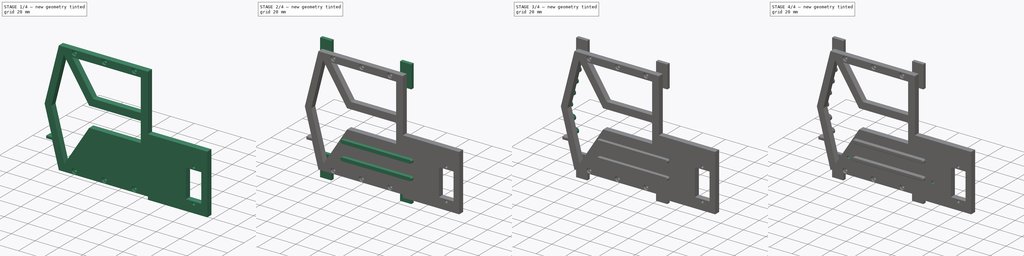
[diagram: build sequence overview — one tinted view per stage of 4, left to right]
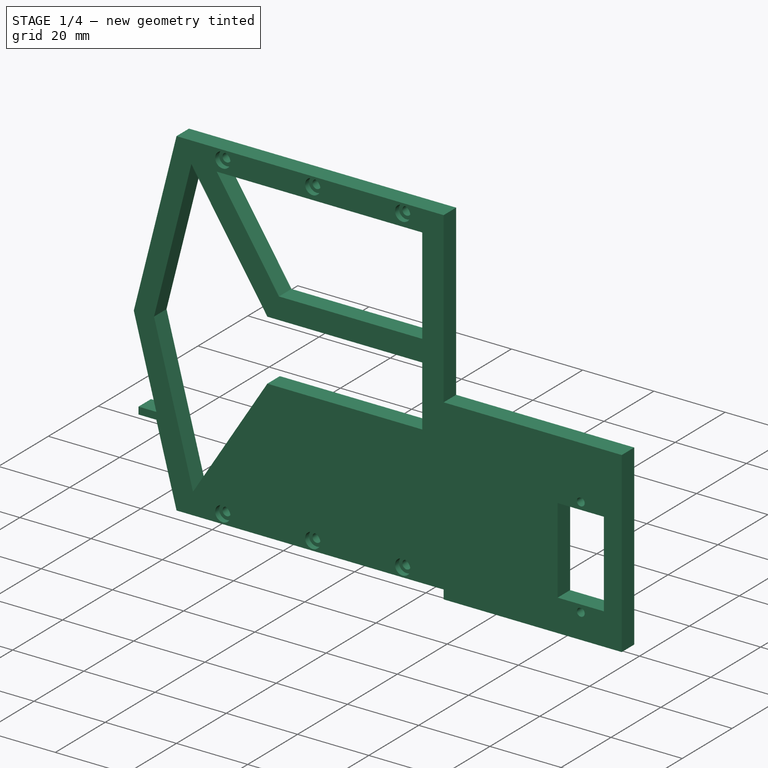
[diagram: stage 1 of 4 — iso view after this stage's code; geometry added in this stage tinted green]
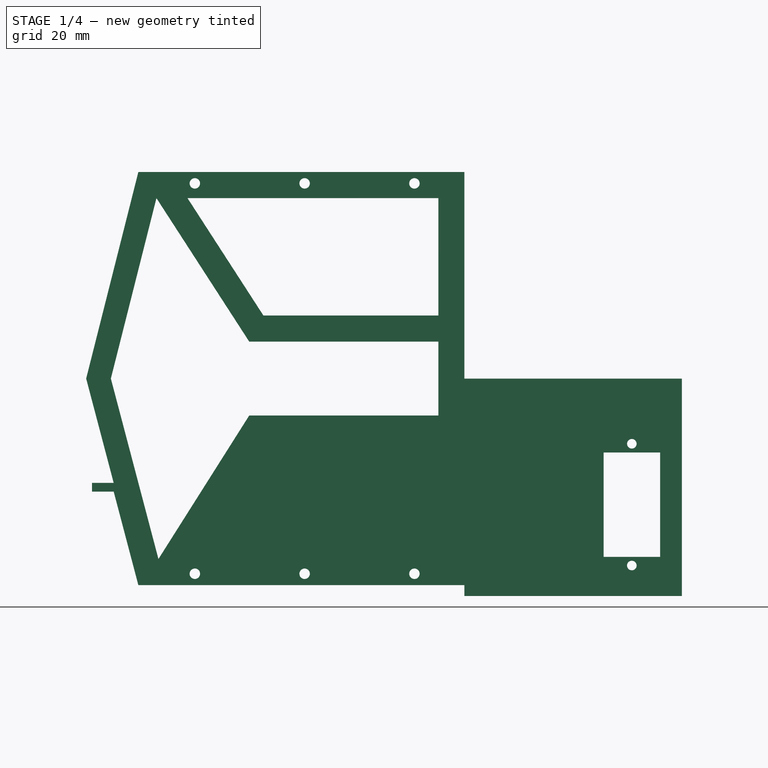
[diagram: stage 1 of 4 — front view after this stage's code; geometry added in this stage tinted green]
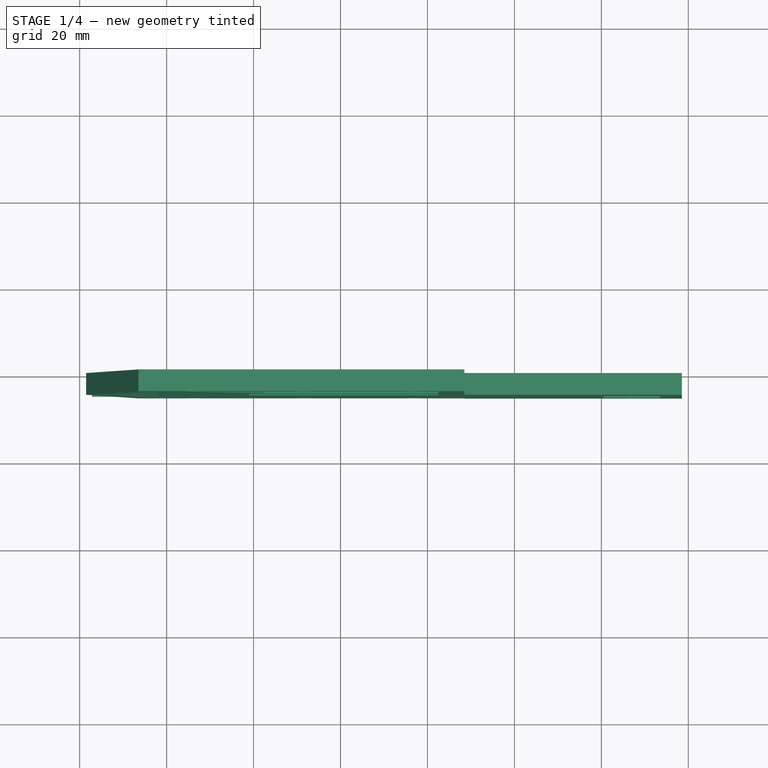
[diagram: stage 1 of 4 — top view after this stage's code; geometry added in this stage tinted green]
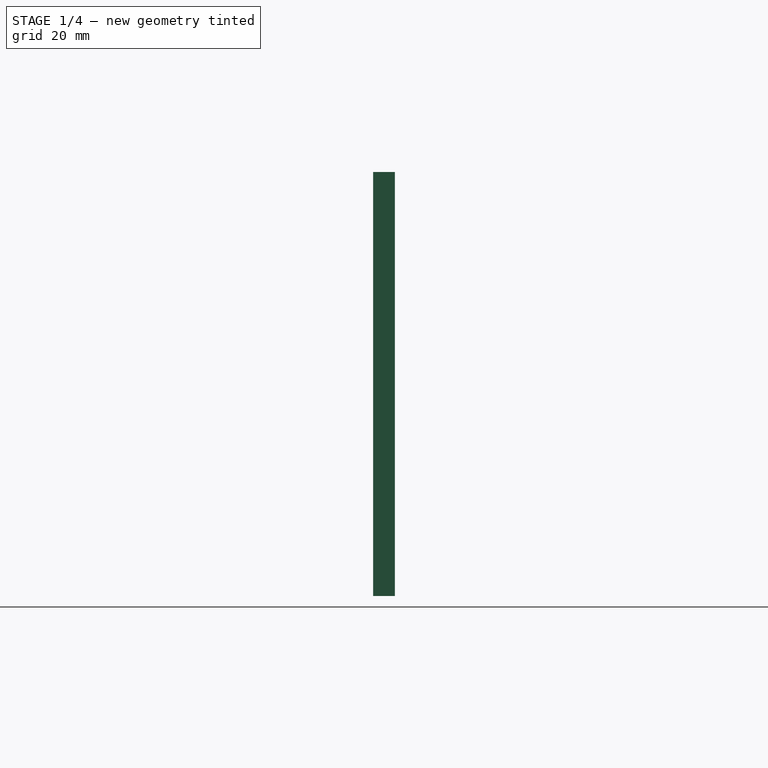
[diagram: stage 1 of 4 — right view after this stage's code; geometry added in this stage tinted green]
FCSTD DOCUMENT  (FreeCAD 1.0R39319 (Git))
Label: middle-bracket-03
License: All rights reserved
LicenseURL: http://en.wikipedia.org/wiki/All_rights_reserved
objects: Sketcher::SketchObject×9, PartDesign::Pad×4, Part::Feature×2, PartDesign::Hole×2, App::Part×1, PartDesign::Body×1, PartDesign::Plane×1, PartDesign::Pocket×1, PartDesign::Chamfer×1, PartDesign::Fillet×1, Measure::MeasureDistance×1
note: 49 computed .brp shape members not serialized (recipe doc carries the construction recipe); baked Part::Feature solids carry a one-line shape summary decoded from their .brp

FEATURE [Part::Feature] LinearPattern001_cs001
  shape: bbox 60 x 0.0002133 x 8 mm, 0 faces, 0 solids (baked)
FEATURE [Sketcher::SketchObject] Sketch001  label="Sketch-pad"
  ArcFitTolerance = 1e-06
  FullyConstrained = true
  MakeInternals = false
  Placement = pos=(0,0,0) rot=(1,0,0;1.5708rad)
  sketch-geometry (46):
    g0: LineSegment [constr] StartX=-50 StartY=55 StartZ=0 EndX=50 EndY=55 EndZ=0
    g1: LineSegment [constr] StartX=-50 StartY=-40 StartZ=0 EndX=50 EndY=-40 EndZ=0
    g2: LineSegment [constr] StartX=-18.4959 StartY=65 StartZ=0 EndX=-18.4959 EndY=-65 EndZ=0
    g3: LineSegment [constr] StartX=42.5041 StartY=-65 StartZ=0 EndX=42.5041 EndY=65 EndZ=0
    g4: GeomPoint [constr] X=-18.4959 Y=55 Z=0
    g5: GeomPoint [constr] X=42.5041 Y=55 Z=0
    g6: GeomPoint [constr] X=42.5041 Y=-40 Z=0
    g7: GeomPoint [constr] X=-18.4959 Y=-40 Z=0
    g8: LineSegment StartX=48.5041 StartY=55 StartZ=0 EndX=-26.4959 EndY=55 EndZ=0
    g9: LineSegment StartX=-26.4959 StartY=55 StartZ=0 EndX=-38.4959 EndY=7.5 EndZ=0
    g10: LineSegment StartX=-32.1662 StartY=-18.5 StartZ=0 EndX=-26.4959 EndY=-40 EndZ=0
    g11: LineSegment StartX=-26.4959 StartY=-40 StartZ=0 EndX=48.5041 EndY=-40 EndZ=0
    g12: LineSegment StartX=48.5041 StartY=-40 StartZ=0 EndX=48.5041 EndY=-42.5 EndZ=0
    g13: LineSegment [constr] StartX=-50 StartY=7.5 StartZ=0 EndX=50 EndY=7.5 EndZ=0
    g14: LineSegment StartX=-22.334 StartY=49 StartZ=0 EndX=-32.8182 EndY=7.5 EndZ=0
    g15: LineSegment StartX=42.5041 StartY=49 StartZ=0 EndX=-15.189 EndY=49 EndZ=0
    g16: LineSegment StartX=42.5041 StartY=7.5 StartZ=0 EndX=42.5041 EndY=16 EndZ=0
    g17: LineSegment StartX=42.5041 StartY=-1 StartZ=0 EndX=42.5041 EndY=7.5 EndZ=0
    g18: LineSegment StartX=-21.8732 StartY=-34 StartZ=0 EndX=-32.8182 EndY=7.5 EndZ=0
    g19: LineSegment [constr] StartX=-0.995912 StartY=16 StartZ=0 EndX=39.0041 EndY=16 EndZ=0
    g20: LineSegment [constr] StartX=-0.995912 StartY=-1 StartZ=0 EndX=39.0041 EndY=-1 EndZ=0
    g21: LineSegment StartX=-22.334 StartY=49 StartZ=0 EndX=-0.995912 EndY=16 EndZ=0
    g22: LineSegment StartX=-21.8732 StartY=-34 StartZ=0 EndX=-0.995912 EndY=-1 EndZ=0
    g23: LineSegment StartX=-0.995912 StartY=16 StartZ=0 EndX=42.5041 EndY=16 EndZ=0
    g24: LineSegment StartX=42.5041 StartY=22 StartZ=0 EndX=2.26948 EndY=22 EndZ=0
    g25: LineSegment StartX=2.26948 StartY=22 StartZ=0 EndX=-15.189 EndY=49 EndZ=0
    g26: LineSegment StartX=-0.995912 StartY=-1 StartZ=0 EndX=42.5041 EndY=-1 EndZ=0
    g27: LineSegment StartX=42.5041 StartY=22 StartZ=0 EndX=42.5041 EndY=49 EndZ=0
    g28: LineSegment [constr] StartX=58.5655 StartY=-17.5 StartZ=0 EndX=-11.4345 EndY=-17.5 EndZ=0
    g29: LineSegment StartX=48.5041 StartY=7.5 StartZ=0 EndX=98.5041 EndY=7.5 EndZ=0
    g30: LineSegment StartX=98.5041 StartY=7.5 StartZ=0 EndX=98.5041 EndY=-42.5 EndZ=0
    g31: LineSegment StartX=98.5041 StartY=-42.5 StartZ=0 EndX=48.5041 EndY=-42.5 EndZ=0
    g32: LineSegment StartX=48.5041 StartY=7.5 StartZ=0 EndX=48.5041 EndY=55 EndZ=0
    g33: LineSegment StartX=-32.1662 StartY=-16.5 StartZ=0 EndX=-37.1662 EndY=-16.5 EndZ=0
    g34: LineSegment StartX=-37.1662 StartY=-16.5 StartZ=0 EndX=-37.1662 EndY=-18.5 EndZ=0
    g35: LineSegment StartX=-37.1662 StartY=-18.5 StartZ=0 EndX=-32.1662 EndY=-18.5 EndZ=0
    g36: LineSegment StartX=-32.1662 StartY=-16.5 StartZ=0 EndX=-38.4959 EndY=7.5 EndZ=0
    g37: LineSegment StartX=80.5041 StartY=-9.5 StartZ=0 EndX=80.5041 EndY=-33.5 EndZ=0
    g38: LineSegment StartX=80.5041 StartY=-33.5 StartZ=0 EndX=93.5041 EndY=-33.5 EndZ=0
    g39: LineSegment StartX=93.5041 StartY=-33.5 StartZ=0 EndX=93.5041 EndY=-9.5 EndZ=0
    g40: LineSegment StartX=93.5041 StartY=-9.5 StartZ=0 EndX=80.5041 EndY=-9.5 EndZ=0
    g41: GeomPoint [constr] X=87.0041 Y=-21.5 Z=0
    g42: LineSegment [constr] StartX=87.0041 StartY=-7.5 StartZ=0 EndX=87.0041 EndY=-21.5 EndZ=0
    g43: LineSegment [constr] StartX=87.0041 StartY=-21.5 StartZ=0 EndX=87.0041 EndY=-35.5 EndZ=0
    g44: Circle CenterX=87.0041 CenterY=-7.5 CenterZ=0 NormalX=0 NormalY=0 NormalZ=1 AngleXU=0 Radius=1.1
    g45: Circle CenterX=87.0041 CenterY=-35.5 CenterZ=0 NormalX=0 NormalY=0 NormalZ=1 AngleXU=0 Radius=1.1
  constraints (127):
    c: DistanceX(g0,g0) = 100
    c: DistanceY(g-20,g0) = -0.5
    c: Symmetric(g0,g0,g-2)
    c: Symmetric(g1,g1,g-2)
    c: DistanceY(g-5,g1) = 0.5
    c: DistanceX(g1,g1) = 100
    c: DistanceX(g2,g-11) = 0.5
    c: DistanceX(g-10,g3) = 0.5
    c: DistanceY(g2,g2) = 130
    c: DistanceY(g3,g3) = 130
    c: Symmetric(g2,g2,g-1)
    c: Symmetric(g3,g3,g-1)
    c: PointOnObject(g4,g2)
    c: PointOnObject(g4,g0)
    c: PointOnObject(g5,g3)
    c: PointOnObject(g6,g1)
    c: PointOnObject(g7,g2)
    c: PointOnObject(g6,g3)
    c: PointOnObject(g5,g0)
    c: PointOnObject(g7,g1)
    c: PointOnObject(g8,g0)
    c: PointOnObject(g8,g0)
    c: Coincident(g8,g9)
    c: PointOnObject(g10,g1)
    c: Coincident(g10,g11)
    c: PointOnObject(g11,g1)
    c: Coincident(g11,g12)
    c: Coincident(g32,g8)
    c: Symmetric(g0,g1,g13)
    c: Symmetric(g1,g0,g13)
    c: PointOnObject(g9,g13)
    c: DistanceX(g8,g8) = 75
    c: DistanceX(g11,g11) = 75
    c: DistanceX(g9,g8) = 12
    c: PointOnObject(g14,g13)
    c: PointOnObject(g27,g3)
    c: Coincident(g27,g15)
    c: Parallel(g8,g15)
    c: Parallel(g9,g14)
    c: DistanceY(g27,g8) = 6
    c: DistanceY(g10,g18) = 6
    c: Vertical(g12)
    c: PointOnObject(g17,g13)
    c: Parallel(g17,g12)
    c: Parallel(g16,g12)
    c: Coincident(g18,g14)
    c: Distance(g14,g10) = 6
    c: Distance(g18,g10) = 6
    c: DistanceY(g11,g13) = 47.5
    c: DistanceY(g13,g0) = 47.5
    c: Distance(g19) = 40
    c: Horizontal(g19)
    c: DistanceY(g19,g-13) = 41.5
    c: DistanceX(g-13,g19) = 17
    c: Symmetric(g19,g20,g13)
    c: Symmetric(g19,g20,g13)
    c: Coincident(g21,g14)
    c: Coincident(g21,g19)
    c: Coincident(g22,g20)
    c: Coincident(g19,g23)
    c: Horizontal(g23)
    c: Coincident(g24,g25)
    c: Horizontal(g26)
    c: Coincident(g15,g25)
    c: Coincident(g16,g23)
    c: Coincident(g17,g26)
    c: PointOnObject(g16,g3)
    c: Parallel(g23,g24)
    c: Parallel(g25,g21)
    c: Coincident(g27,g24)
    c: DistanceY(g16,g24) = 6
    c: Distance(g24,g21) = 6
    c: Coincident(g26,g20)
    c: Coincident(g16,g17)
    c: Coincident(g18,g22)
    c: DistanceX(g24,g8) = 6
    c: DistanceX(g17,g11) = 6
    c: Distance(g14,g8) = 6
    c: Symmetric(g18,g20,g28)
    c: Horizontal(g28)
    c: DistanceX(g28,g28) = 70
    c: Horizontal(g29)
    c: Coincident(g29,g30)
    c: Vertical(g30)
    c: Coincident(g30,g31)
    c: Horizontal(g31)
    c: Coincident(g12,g31)
    c: Coincident(g32,g29)
    c: Symmetric(g29,g12,g28)
    c: Parallel(g32,g12)
    c: Horizontal(g33)
    c: Coincident(g33,g34)
    c: Vertical(g34)
    c: Coincident(g34,g35)
    c: Horizontal(g35)
    c: Coincident(g10,g35)
    c: Coincident(g36,g33)
    c: Coincident(g36,g9)
    c: DistanceY(g34,g34) = 2
    c: Parallel(g36,g10)
    c: DistanceX(g33,g33) = 5
    c: Symmetric(g33,g10,g28)
    c: DistanceX(g31,g31) = 50
    c: Coincident(g37,g38)
    c: Coincident(g38,g39)
    c: Coincident(g39,g40)
    c: Coincident(g40,g37)
    c: Vertical(g37)
    c: Vertical(g39)
    c: Horizontal(g38)
    c: Horizontal(g40)
    c: Distance(g37,g39) = 13
    c: Distance(g38,g40) = 24
    c: DistanceY(g28,g37) = 8
    c: DistanceX(g39,g29) = 5
    c: DistanceY(g30,g30) = 50
    c: Symmetric(g37,g38,g41)
    c: Coincident(g42,g41)
    c: Vertical(g42)
    c: Coincident(g42,g43)
    c: Equal(g42,g43)
    c: DistanceY(g42,g42) = 14
    c: DistanceY(g43,g43) = 14
    c: Radius(g44) = 1.1
    c: Coincident(g42,g44)
    c: Diameter(g45) = 2.2
    c: Coincident(g45,g43)
FEATURE [PartDesign::Pad] Pad
  Direction = (0,-1,-2e-16)
  Length = 5
  Length2 = 10
  Placement = pos=(0,0,0) rot=(1,0,0;1.5708rad)
  Profile = -> Sketch001
  ReferenceAxis = -> Sketch001 [N_Axis]
  Suppressed = false
  Type = 0
FEATURE [PartDesign::Plane] DatumPlane
  AttachmentSupport = -> [Pad001]
  Length = 161.774
  MapMode = 5
  Placement = pos=(0,-5,0) rot=(1,0,0;1.5708rad)
  ResizeMode = 0
  Width = 136.774
FEATURE [PartDesign::Hole] Hole
  BaseFeature = -> Pad
  CustomThreadClearance = 0
  Depth = 260.408
  DepthType = 1
  Diameter = 2.4
  DrillForDepth = false
  DrillPoint = 1
  DrillPointAngle = 118
  HoleCutCountersinkAngle = 90
  HoleCutCustomValues = false
  HoleCutDepth = 1.6
  HoleCutDiameter = 4.3
  HoleCutType = 4
  ModelThread = false
  Placement = pos=(0,0,0) rot=(1,0,0;1.5708rad)
  Profile = -> Sketch002
  Suppressed = false
  Tapered = false
  TaperedAngle = 90
  ThreadClass = 0
  ThreadDepth = 260.408
  ThreadDepthType = 0
  ThreadDirection = 0
  ThreadFit = 0
  ThreadSize = 6
  ThreadType = 1
  Threaded = false
  UseCustomThreadClearance = false
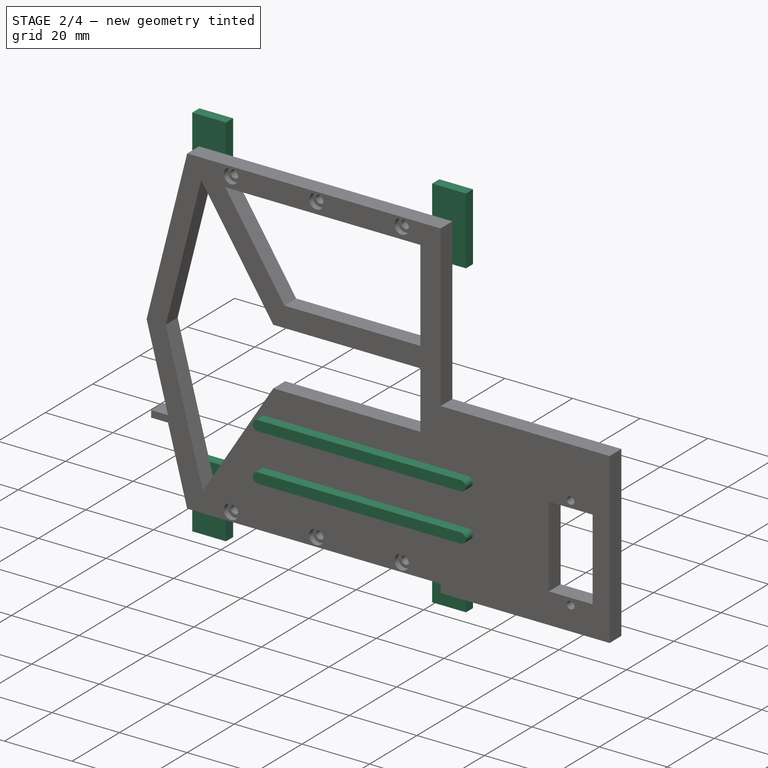
[diagram: stage 2 of 4 — iso view after this stage's code; geometry added in this stage tinted green]
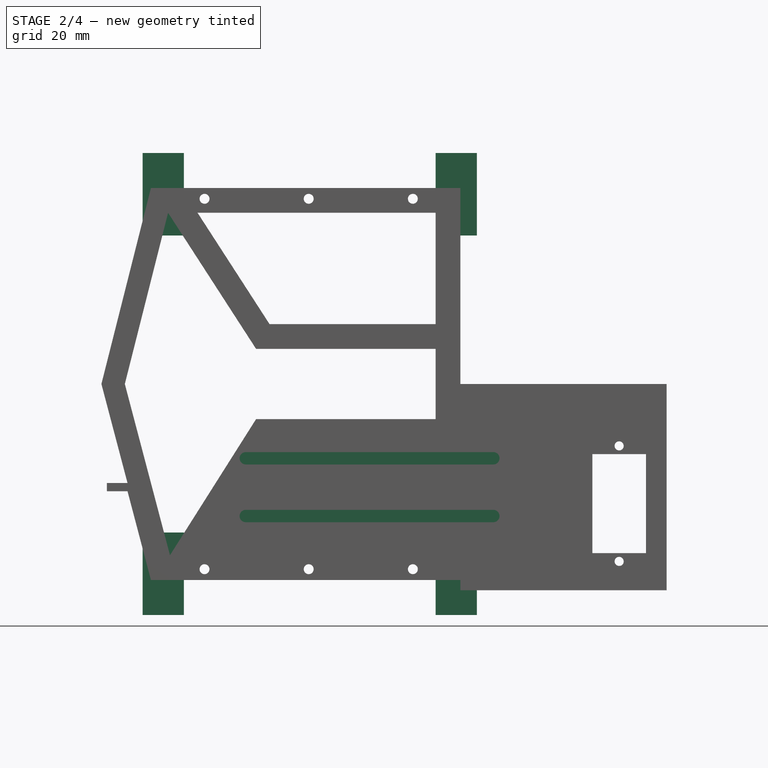
[diagram: stage 2 of 4 — front view after this stage's code; geometry added in this stage tinted green]
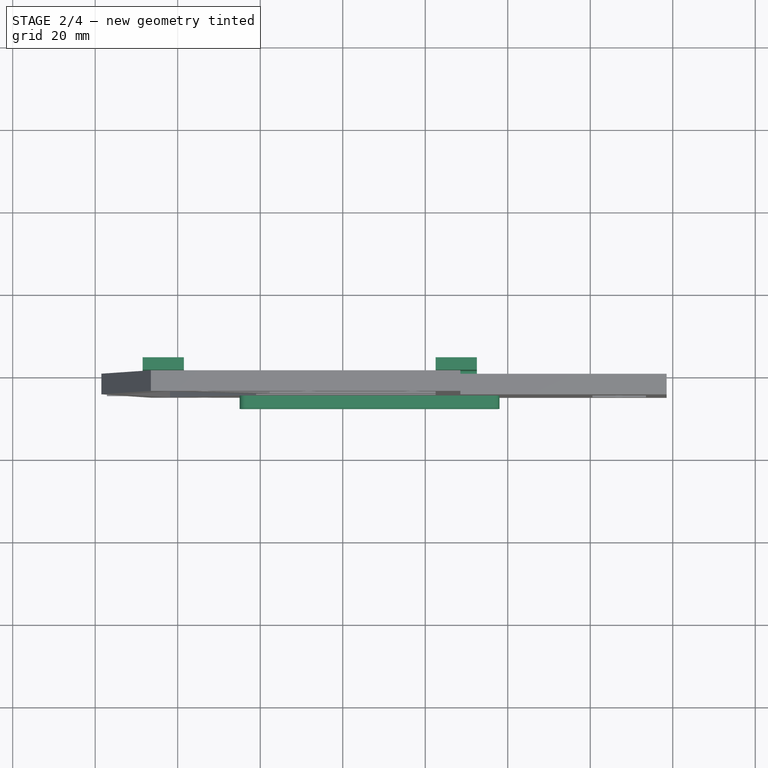
[diagram: stage 2 of 4 — top view after this stage's code; geometry added in this stage tinted green]
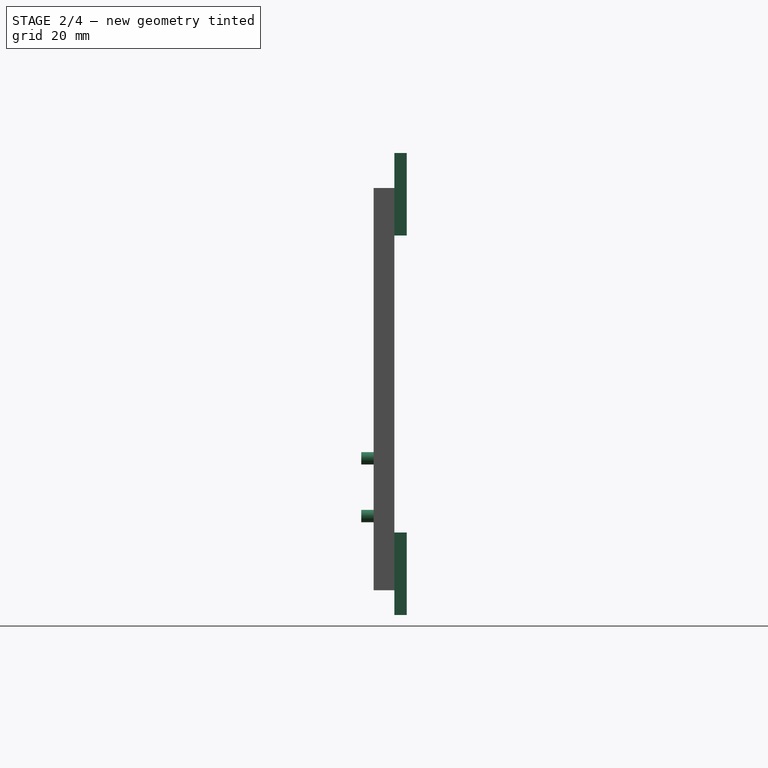
[diagram: stage 2 of 4 — right view after this stage's code; geometry added in this stage tinted green]
FEATURE [Sketcher::SketchObject] Sketch003  label="Sketch-braces"
  ArcFitTolerance = 1e-06
  FullyConstrained = true
  MakeInternals = false
  Placement = pos=(0,0,0) rot=(1,0,0;1.5708rad)
  sketch-geometry (24):
    g0: LineSegment [constr] StartX=-50 StartY=55 StartZ=0 EndX=50 EndY=55 EndZ=0
    g1: LineSegment [constr] StartX=-50 StartY=-40 StartZ=0 EndX=50 EndY=-40 EndZ=0
    g2: LineSegment [constr] StartX=-18.4959 StartY=65 StartZ=0 EndX=-18.4959 EndY=-65 EndZ=0
    g3: LineSegment [constr] StartX=42.5041 StartY=-65 StartZ=0 EndX=42.5041 EndY=65 EndZ=0
    g4: GeomPoint [constr] X=-18.4959 Y=55 Z=0
    g5: GeomPoint [constr] X=42.5041 Y=55 Z=0
    g6: GeomPoint [constr] X=42.5041 Y=-40 Z=0
    g7: GeomPoint [constr] X=-18.4959 Y=-40 Z=0
    g8: LineSegment StartX=-18.4959 StartY=43.5 StartZ=0 EndX=-18.4959 EndY=63.5 EndZ=0
    g9: LineSegment StartX=-18.4959 StartY=63.5 StartZ=0 EndX=-28.4959 EndY=63.5 EndZ=0
    g10: LineSegment StartX=-28.4959 StartY=63.5 StartZ=0 EndX=-28.4959 EndY=43.5 EndZ=0
    g11: LineSegment StartX=-28.4959 StartY=43.5 StartZ=0 EndX=-18.4959 EndY=43.5 EndZ=0
    g12: LineSegment StartX=42.5041 StartY=43.5 StartZ=0 EndX=52.5041 EndY=43.5 EndZ=0
    g13: LineSegment StartX=52.5041 StartY=43.5 StartZ=0 EndX=52.5041 EndY=63.5 EndZ=0
    g14: LineSegment StartX=52.5041 StartY=63.5 StartZ=0 EndX=42.5041 EndY=63.5 EndZ=0
    g15: LineSegment StartX=42.5041 StartY=63.5 StartZ=0 EndX=42.5041 EndY=43.5 EndZ=0
    g16: LineSegment StartX=-18.4959 StartY=-28.5 StartZ=0 EndX=-28.4959 EndY=-28.5 EndZ=0
    g17: LineSegment StartX=-28.4959 StartY=-28.5 StartZ=0 EndX=-28.4959 EndY=-48.5 EndZ=0
    g18: LineSegment StartX=-28.4959 StartY=-48.5 StartZ=0 EndX=-18.4959 EndY=-48.5 EndZ=0
    g19: LineSegment StartX=-18.4959 StartY=-48.5 StartZ=0 EndX=-18.4959 EndY=-28.5 EndZ=0
    g20: LineSegment StartX=42.5041 StartY=-28.5 StartZ=0 EndX=42.5041 EndY=-48.5 EndZ=0
    g21: LineSegment StartX=42.5041 StartY=-48.5 StartZ=0 EndX=52.5041 EndY=-48.5 EndZ=0
    g22: LineSegment StartX=52.5041 StartY=-48.5 StartZ=0 EndX=52.5041 EndY=-28.5 EndZ=0
    g23: LineSegment StartX=52.5041 StartY=-28.5 StartZ=0 EndX=42.5041 EndY=-28.5 EndZ=0
  constraints (68):
    c: DistanceX(g0,g0) = 100
    c: DistanceY(g-20,g0) = -0.5
    c: Symmetric(g0,g0,g-2)
    c: Symmetric(g1,g1,g-2)
    c: DistanceY(g-5,g1) = 0.5
    c: DistanceX(g1,g1) = 100
    c: DistanceX(g2,g-11) = 0.5
    c: DistanceX(g-10,g3) = 0.5
    c: DistanceY(g2,g2) = 130
    c: DistanceY(g3,g3) = 130
    c: Symmetric(g2,g2,g-1)
    c: Symmetric(g3,g3,g-1)
    c: PointOnObject(g4,g2)
    c: PointOnObject(g4,g0)
    c: PointOnObject(g5,g3)
    c: PointOnObject(g6,g1)
    c: PointOnObject(g7,g2)
    c: PointOnObject(g6,g3)
    c: PointOnObject(g5,g0)
    c: PointOnObject(g7,g1)
    c: Coincident(g8,g9)
    c: Coincident(g9,g10)
    c: Coincident(g10,g11)
    c: Coincident(g11,g8)
    c: Vertical(g8)
    c: Vertical(g10)
    c: Horizontal(g9)
    c: Horizontal(g11)
    c: Distance(g8,g10) = 10
    c: Distance(g9,g11) = 20
    c: PointOnObject(g8,g2)
    c: Coincident(g12,g13)
    c: Coincident(g13,g14)
    c: Coincident(g14,g15)
    c: Coincident(g15,g12)
    c: Horizontal(g12)
    c: Horizontal(g14)
    c: Vertical(g13)
    c: Vertical(g15)
    c: PointOnObject(g12,g3)
    c: Coincident(g16,g17)
    c: Coincident(g17,g18)
    c: Coincident(g18,g19)
    c: Coincident(g19,g16)
    c: Horizontal(g16)
    c: Horizontal(g18)
    c: Vertical(g17)
    c: Vertical(g19)
    c: Distance(g17,g19) = 10
    c: Distance(g16,g18) = 20
    c: PointOnObject(g16,g2)
    c: Coincident(g20,g21)
    c: Coincident(g21,g22)
    c: Coincident(g22,g23)
    c: Coincident(g23,g20)
    c: Vertical(g20)
    c: Vertical(g22)
    c: Horizontal(g21)
    c: Horizontal(g23)
    c: Distance(g20,g22) = 10
    c: Distance(g21,g23) = 20
    c: PointOnObject(g20,g3)
    c: DistanceX(g12,g12) = 10
    c: DistanceY(g13,g13) = 20
    c: DistanceY(g-13,g8) = 6
    c: DistanceY(g-19,g14) = 6
    c: DistanceY(g17,g-11) = 6
    c: DistanceY(g20,g-10) = 6
FEATURE [Sketcher::SketchObject] Sketch005  label="Sketch-bot-pegs"
  ArcFitTolerance = 1e-06
  FullyConstrained = true
  MakeInternals = false
  MapMode = 5
  Placement = pos=(0,-1.6e-15,0) rot=(-1,0,0;1.5708rad)
  sketch-geometry (8):
    g0: LineSegment [constr] StartX=-27.745 StartY=22.5 StartZ=0 EndX=-35.6571 EndY=-7.5 EndZ=0
    g1: LineSegment [constr] StartX=-35.6571 StartY=-7.5 StartZ=0 EndX=-26.1097 EndY=-45.2917 EndZ=0
    g2: Circle CenterX=-30.3823 CenterY=12.5 CenterZ=0 NormalX=0 NormalY=0 NormalZ=1 AngleXU=0 Radius=2.5
    g3: Circle CenterX=-33.0197 CenterY=2.5 CenterZ=0 NormalX=0 NormalY=0 NormalZ=1 AngleXU=0 Radius=2.5
    g4: Circle CenterX=-35.6571 CenterY=-7.5 CenterZ=0 NormalX=0 NormalY=0 NormalZ=1 AngleXU=0 Radius=2.5
    g5: Circle CenterX=-33.1308 CenterY=-17.5 CenterZ=0 NormalX=0 NormalY=0 NormalZ=1 AngleXU=0 Radius=2.5
    g6: Circle CenterX=-30.6044 CenterY=-27.5 CenterZ=0 NormalX=0 NormalY=0 NormalZ=1 AngleXU=0 Radius=2.5
    g7: Circle CenterX=-28.0781 CenterY=-37.5 CenterZ=0 NormalX=0 NormalY=0 NormalZ=1 AngleXU=0 Radius=2.5
  constraints (21):
    c: Coincident(g0,g1)
    c: Symmetric(g-5,g-6,g0)
    c: Symmetric(g-3,g-4,g0)
    c: Symmetric(g-5,g-6,g1)
    c: PointOnObject(g2,g0)
    c: PointOnObject(g3,g0)
    c: Coincident(g4,g0)
    c: PointOnObject(g5,g1)
    c: PointOnObject(g6,g1)
    c: Radius(g2) = 2.5
    c: Equal(g2,g3)
    c: Equal(g4,g3)
    c: Equal(g4,g5)
    c: DistanceY(g0,g3) = 10
    c: DistanceY(g3,g2) = 10
    c: DistanceY(g5,g0) = 10
    c: DistanceY(g6,g5) = 10
    c: PointOnObject(g7,g1)
    c: Equal(g5,g6)
    c: Equal(g6,g7)
    c: DistanceY(g7,g6) = 10
FEATURE [Sketcher::SketchObject] Sketch006  label="Sketch-bot-pegs001"
  ArcFitTolerance = 1e-06
  FullyConstrained = true
  MakeInternals = false
  MapMode = 5
  Placement = pos=(0,-1.6e-15,0) rot=(-1,0,0;1.5708rad)
  sketch-geometry (14):
    g0: LineSegment [constr] StartX=-27.745 StartY=22.5 StartZ=0 EndX=-35.6571 EndY=-7.5 EndZ=0
    g1: LineSegment [constr] StartX=-35.6571 StartY=-7.5 StartZ=0 EndX=-26.1097 EndY=-45.2917 EndZ=0
    g2: Circle CenterX=-30.3823 CenterY=12.5 CenterZ=0 NormalX=0 NormalY=0 NormalZ=1 AngleXU=0 Radius=2.5
    g3: Circle CenterX=-33.0197 CenterY=2.5 CenterZ=0 NormalX=0 NormalY=0 NormalZ=1 AngleXU=0 Radius=2.5
    g4: Circle CenterX=-35.6571 CenterY=-7.5 CenterZ=0 NormalX=0 NormalY=0 NormalZ=1 AngleXU=0 Radius=2.5
    g5: Circle CenterX=-33.1308 CenterY=-17.5 CenterZ=0 NormalX=0 NormalY=0 NormalZ=1 AngleXU=0 Radius=2.5
    g6: Circle CenterX=-30.6044 CenterY=-27.5 CenterZ=0 NormalX=0 NormalY=0 NormalZ=1 AngleXU=0 Radius=2.5
    g7: Circle CenterX=-28.0781 CenterY=-37.5 CenterZ=0 NormalX=0 NormalY=0 NormalZ=1 AngleXU=0 Radius=2.5
    g8: Circle CenterX=-30.3823 CenterY=12.5 CenterZ=0 NormalX=0 NormalY=0 NormalZ=1 AngleXU=0 Radius=2
    g9: Circle CenterX=-33.0197 CenterY=2.5 CenterZ=0 NormalX=0 NormalY=0 NormalZ=1 AngleXU=0 Radius=2
    g10: Circle CenterX=-35.6571 CenterY=-7.5 CenterZ=0 NormalX=0 NormalY=0 NormalZ=1 AngleXU=0 Radius=2
    g11: Circle CenterX=-33.1308 CenterY=-17.5 CenterZ=0 NormalX=0 NormalY=0 NormalZ=1 AngleXU=0 Radius=2
    g12: Circle CenterX=-30.6044 CenterY=-27.5 CenterZ=0 NormalX=0 NormalY=0 NormalZ=1 AngleXU=0 Radius=2
    g13: Circle CenterX=-28.0781 CenterY=-37.5 CenterZ=0 NormalX=0 NormalY=0 NormalZ=1 AngleXU=0 Radius=2
  constraints (33):
    c: Coincident(g0,g1)
    c: Symmetric(g-5,g-6,g0)
    c: Symmetric(g-3,g-4,g0)
    c: Symmetric(g-5,g-6,g1)
    c: PointOnObject(g2,g0)
    c: PointOnObject(g3,g0)
    c: Coincident(g4,g0)
    c: PointOnObject(g5,g1)
    c: PointOnObject(g6,g1)
    c: Radius(g2) = 2.5
    c: Equal(g2,g3)
    c: Equal(g4,g3)
    c: Equal(g4,g5)
    c: DistanceY(g0,g3) = 10
    c: DistanceY(g3,g2) = 10
    c: DistanceY(g5,g0) = 10
    c: DistanceY(g6,g5) = 10
    c: PointOnObject(g7,g1)
    c: Equal(g5,g6)
    c: Equal(g6,g7)
    c: DistanceY(g7,g6) = 10
    c: Coincident(g8,g2)
    c: Coincident(g9,g3)
    c: Coincident(g10,g0)
    c: Coincident(g11,g5)
    c: Coincident(g12,g6)
    c: Coincident(g13,g7)
    c: Radius(g8) = 2
    c: Equal(g8,g9)
    c: Equal(g9,g10)
    c: Equal(g10,g11)
    c: Equal(g11,g12)
    c: Equal(g12,g13)
FEATURE [Part::Feature] Part_cs
  shape: bbox 0.0001776 x 8 x 95 mm, 0 faces, 0 solids (baked)
FEATURE [Sketcher::SketchObject] Sketch008
  ArcFitTolerance = 1e-06
  AttachmentSupport = -> [Part_cs]
  ExternalGeometry = -> [Part_cs]
  FullyConstrained = true
  MakeInternals = false
  MapMode = 13
  Placement = pos=(30,-3.33333,-12) rot=(0.57735,0.57735,0.57735;2.0944rad)
  constraints (3):
    c: DistanceY(g-5,g-8) = 14
    c: DistanceY(g-7,g-8) = 3
    c: DistanceX(g-3,g-6) = 3
FEATURE [App::Part] Part
  Group = -> [Body,Sketch,LinearPattern001_cs001]
  Origin = -> Origin
FEATURE [PartDesign::Body] Body
  AllowCompound = false
  Group = -> [Sketch001,Pad,Sketch002,Hole,Sketch003,Pad001,DatumPlane,Sketch004,Pad002,Sketch005,Pad003,Sketch006,Pocket,Chamfer,Fillet,Sketch007,Hole001]
  Origin = -> Origin001
  Tip = -> Hole001
FEATURE [Sketcher::SketchObject] Sketch
  ArcFitTolerance = 1e-06
  AttachmentSupport = -> [Pad001]
  ExternalGeometry = -> [LinearPattern001_cs001]
  FullyConstrained = true
  MakeInternals = false
  MapMode = 5
  Placement = pos=(0,-5,0) rot=(1,0,0;1.5708rad)
  sketch-geometry (8):
    g0: LineSegment [constr] StartX=-50 StartY=55 StartZ=0 EndX=50 EndY=55 EndZ=0
    g1: LineSegment [constr] StartX=-50 StartY=-40 StartZ=0 EndX=50 EndY=-40 EndZ=0
    g2: LineSegment [constr] StartX=-18.4959 StartY=65 StartZ=0 EndX=-18.4959 EndY=-65 EndZ=0
    g3: LineSegment [constr] StartX=42.5041 StartY=-65 StartZ=0 EndX=42.5041 EndY=65 EndZ=0
    g4: GeomPoint [constr] X=-18.4959 Y=55 Z=0
    g5: GeomPoint [constr] X=42.5041 Y=55 Z=0
    g6: GeomPoint [constr] X=42.5041 Y=-40 Z=0
    g7: GeomPoint [constr] X=-18.4959 Y=-40 Z=0
  constraints (20):
    c: DistanceX(g0,g0) = 100
    c: DistanceY(g-20,g0) = -0.5
    c: Symmetric(g0,g0,g-2)
    c: Symmetric(g1,g1,g-2)
    c: DistanceY(g-5,g1) = 0.5
    c: DistanceX(g1,g1) = 100
    c: DistanceX(g2,g-11) = 0.5
    c: DistanceX(g-10,g3) = 0.5
    c: DistanceY(g2,g2) = 130
    c: DistanceY(g3,g3) = 130
    c: Symmetric(g2,g2,g-1)
    c: Symmetric(g3,g3,g-1)
    c: PointOnObject(g4,g2)
    c: PointOnObject(g4,g0)
    c: PointOnObject(g5,g3)
    c: PointOnObject(g6,g1)
    c: PointOnObject(g7,g2)
    c: PointOnObject(g6,g3)
    c: PointOnObject(g5,g0)
    c: PointOnObject(g7,g1)
FEATURE [Sketcher::SketchObject] Sketch002  label="Sketch-holes"
  ArcFitTolerance = 1e-06
  AttachmentSupport = -> [Hole]
  FullyConstrained = true
  MakeInternals = false
  MapMode = 5
  Placement = pos=(0,-5,0) rot=(1,0,0;1.5708rad)
  sketch-geometry (14):
    g0: LineSegment [constr] StartX=-50 StartY=55 StartZ=0 EndX=50 EndY=55 EndZ=0
    g1: LineSegment [constr] StartX=-50 StartY=-40 StartZ=0 EndX=50 EndY=-40 EndZ=0
    g2: LineSegment [constr] StartX=-18.4959 StartY=65 StartZ=0 EndX=-18.4959 EndY=-65 EndZ=0
    g3: LineSegment [constr] StartX=42.5041 StartY=-65 StartZ=0 EndX=42.5041 EndY=65 EndZ=0
    g4: GeomPoint [constr] X=-18.4959 Y=55 Z=0
    g5: GeomPoint [constr] X=42.5041 Y=55 Z=0
    g6: GeomPoint [constr] X=42.5041 Y=-40 Z=0
    g7: GeomPoint [constr] X=-18.4959 Y=-40 Z=0
    g8: Circle CenterX=-13.5 CenterY=52.3917 CenterZ=0 NormalX=0 NormalY=0 NormalZ=1 AngleXU=0 Radius=0.8
    g9: Circle CenterX=11.75 CenterY=52.3917 CenterZ=0 NormalX=0 NormalY=0 NormalZ=1 AngleXU=0 Radius=0.8
    g10: Circle CenterX=37 CenterY=52.3917 CenterZ=0 NormalX=0 NormalY=0 NormalZ=1 AngleXU=0 Radius=0.8
    g11: Circle CenterX=-13.5 CenterY=-37.3917 CenterZ=0 NormalX=0 NormalY=0 NormalZ=1 AngleXU=0 Radius=0.8
    g12: Circle CenterX=11.75 CenterY=-37.3917 CenterZ=0 NormalX=0 NormalY=0 NormalZ=1 AngleXU=0 Radius=0.8
    g13: Circle CenterX=37 CenterY=-37.3917 CenterZ=0 NormalX=0 NormalY=0 NormalZ=1 AngleXU=0 Radius=0.8
  constraints (32):
    c: DistanceX(g0,g0) = 100
    c: DistanceY(g-20,g0) = -0.5
    c: Symmetric(g0,g0,g-2)
    c: Symmetric(g1,g1,g-2)
    c: DistanceY(g-5,g1) = 0.5
    c: DistanceX(g1,g1) = 100
    c: DistanceX(g2,g-11) = 0.5
    c: DistanceX(g-10,g3) = 0.5
    c: DistanceY(g2,g2) = 130
    c: DistanceY(g3,g3) = 130
    c: Symmetric(g2,g2,g-1)
    c: Symmetric(g3,g3,g-1)
    c: PointOnObject(g4,g2)
    c: PointOnObject(g4,g0)
    c: PointOnObject(g5,g3)
    c: PointOnObject(g6,g1)
    c: PointOnObject(g7,g2)
    c: PointOnObject(g6,g3)
    c: PointOnObject(g5,g0)
    c: PointOnObject(g7,g1)
    c: Coincident(g8,g-24)
    c: Equal(g8,g-24)
    c: Coincident(g9,g-25)
    c: Equal(g9,g-25)
    c: Coincident(g10,g-26)
    c: Equal(g10,g-26)
    c: Coincident(g11,g-21)
    c: Equal(g11,g-21)
    c: Coincident(g12,g-22)
    c: Equal(g12,g-22)
    c: Coincident(g13,g-23)
    c: Equal(g13,g-23)
FEATURE [PartDesign::Pad] Pad001
  BaseFeature = -> Hole
  Direction = (0,-1,-2e-16)
  Length = 3
  Length2 = 10
  Placement = pos=(0,0,0) rot=(1,0,0;1.5708rad)
  Profile = -> Sketch003
  ReferenceAxis = -> Sketch003 [N_Axis]
  Reversed = true
  Suppressed = false
  Type = 0
FEATURE [Sketcher::SketchObject] Sketch004  label="Sketch-rails"
  ArcFitTolerance = 1e-06
  AttachmentSupport = -> [Pad001]
  ExternalGeometry = -> [Pad001]
  FullyConstrained = true
  MakeInternals = false
  MapMode = 5
  Placement = pos=(0,-5,0) rot=(1,0,0;1.5708rad)
  sketch-geometry (10):
    g0: LineSegment [constr] StartX=-21.8732 StartY=-34 StartZ=0 EndX=98.5041 EndY=-34 EndZ=0
    g1: LineSegment [constr] StartX=-11.4345 StartY=-17.5 StartZ=0 EndX=70.5041 EndY=-17.5 EndZ=0
    g2: ArcOfCircle CenterX=-3.49591 CenterY=-10.5 CenterZ=0 NormalX=0 NormalY=0 NormalZ=1 AngleXU=0 Radius=1.5 StartAngle=1.5708 EndAngle=4.71239
    g3: ArcOfCircle CenterX=56.5041 CenterY=-10.5 CenterZ=0 NormalX=0 NormalY=0 NormalZ=1 AngleXU=0 Radius=1.5 StartAngle=4.71239 EndAngle=7.85398
    g4: LineSegment StartX=-3.49591 StartY=-9 StartZ=0 EndX=56.5041 EndY=-9 EndZ=0
    g5: LineSegment StartX=-3.49591 StartY=-12 StartZ=0 EndX=56.5041 EndY=-12 EndZ=0
    g6: ArcOfCircle CenterX=-3.49591 CenterY=-24.5 CenterZ=0 NormalX=0 NormalY=0 NormalZ=1 AngleXU=0 Radius=1.5 StartAngle=1.5708 EndAngle=4.71239
    g7: ArcOfCircle CenterX=56.5041 CenterY=-24.5 CenterZ=0 NormalX=0 NormalY=0 NormalZ=1 AngleXU=0 Radius=1.5 StartAngle=4.71239 EndAngle=7.85398
    g8: LineSegment StartX=-3.49591 StartY=-23 StartZ=0 EndX=56.5041 EndY=-23 EndZ=0
    g9: LineSegment StartX=-3.49591 StartY=-26 StartZ=0 EndX=56.5041 EndY=-26 EndZ=0
  constraints (25):
    c: Coincident(g0,g-8)
    c: Horizontal(g0)
    c: PointOnObject(g0,g-9)
    c: Symmetric(g-7,g0,g1)
    c: Symmetric(g-7,g0,g1)
    c: Tangent(g2,g4) = 1.5708
    c: Tangent(g2,g5) = -1.5708
    c: Tangent(g3,g4) = 1.5708
    c: Tangent(g3,g5) = -1.5708
    c: Equal(g2,g3)
    c: Horizontal(g5)
    c: Radius(g2) = 1.5
    c: Tangent(g6,g8) = 1.5708
    c: Tangent(g6,g9) = -1.5708
    c: Tangent(g7,g8) = 1.5708
    c: Tangent(g7,g9) = -1.5708
    c: Equal(g6,g7)
    c: Radius(g6) = 1.5
    c: Horizontal(g8)
    c: DistanceY(g1,g3) = 7
    c: DistanceY(g7,g1) = 7
    c: DistanceX(g7,g3) = 0
    c: DistanceX(g2,g6) = 0
    c: DistanceX(g3,g-9) = 42
    c: DistanceX(g4,g4) = 60
FEATURE [PartDesign::Pad] Pad002
  BaseFeature = -> Pad001
  Direction = (0,-1,2e-16)
  Length = 3
  Length2 = 10
  Placement = pos=(0,0,0) rot=(1,0,0;1.5708rad)
  Profile = -> Sketch004
  ReferenceAxis = -> Sketch004 [N_Axis]
  Suppressed = false
  Type = 0
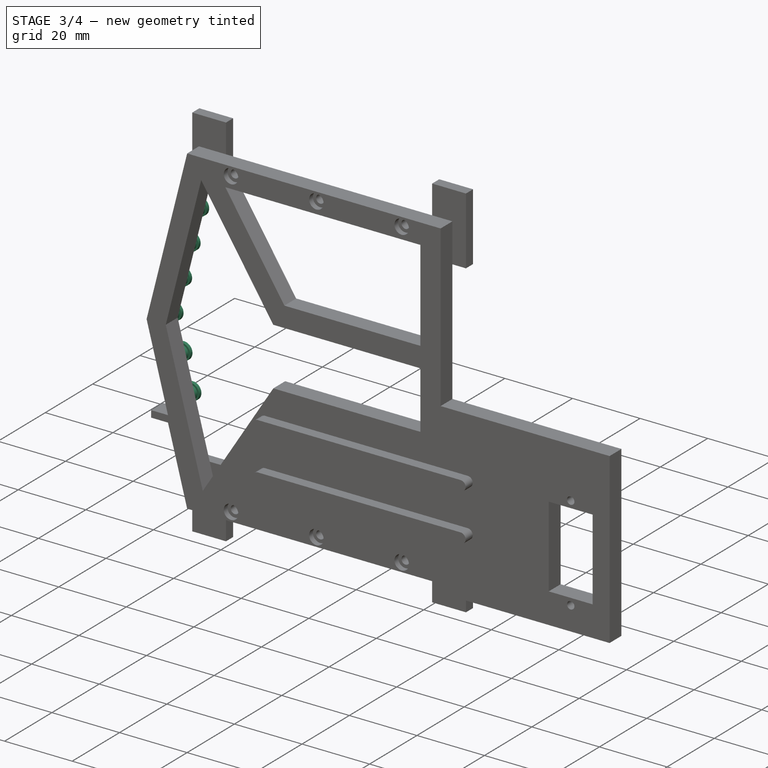
[diagram: stage 3 of 4 — iso view after this stage's code; geometry added in this stage tinted green]
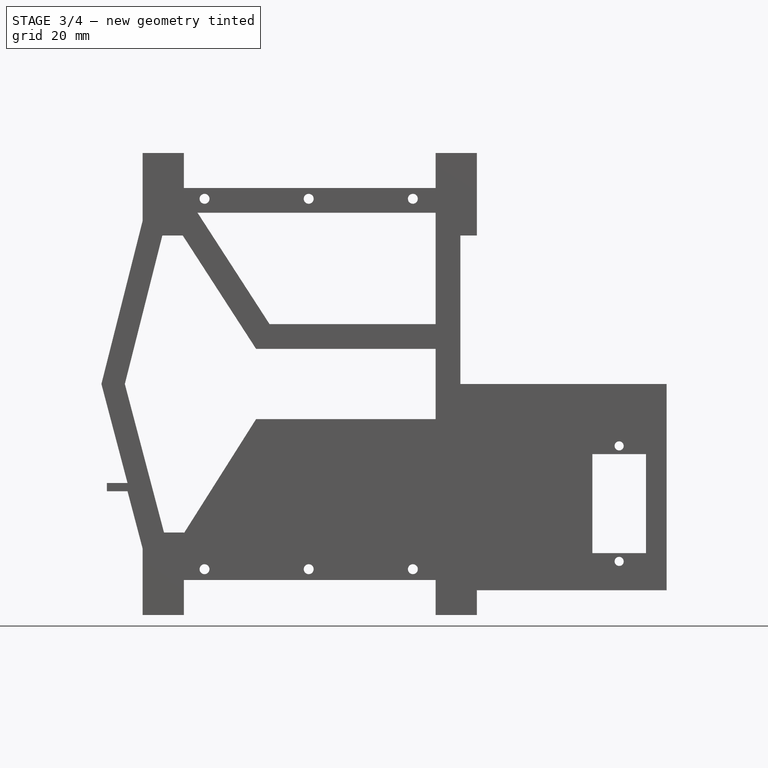
[diagram: stage 3 of 4 — front view after this stage's code; geometry added in this stage tinted green]
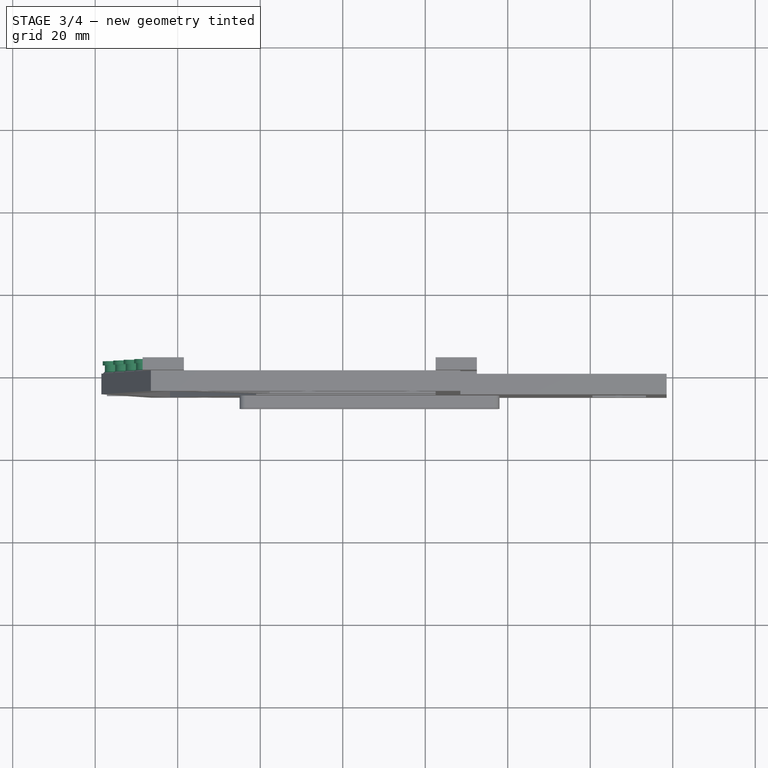
[diagram: stage 3 of 4 — top view after this stage's code; geometry added in this stage tinted green]
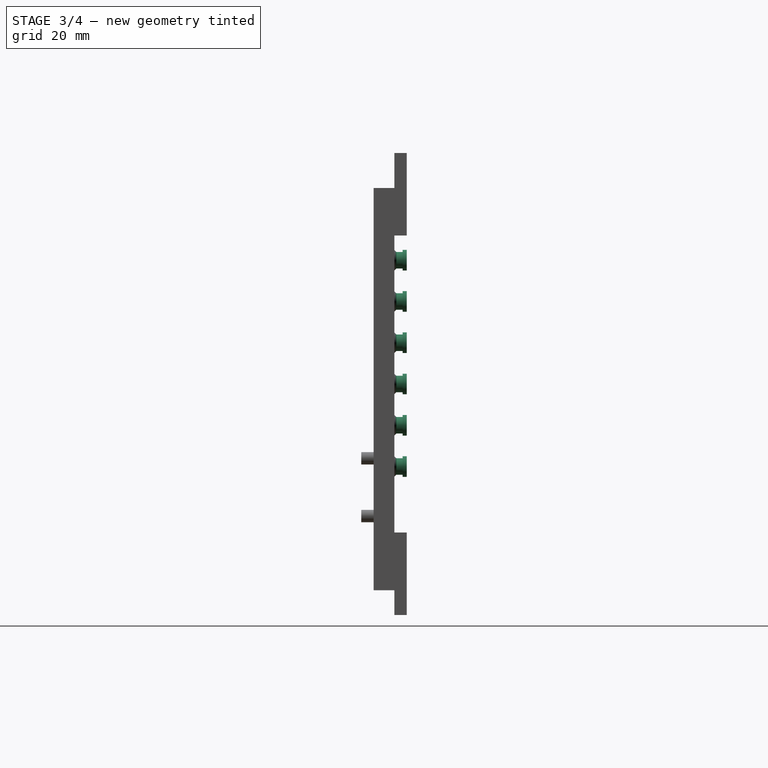
[diagram: stage 3 of 4 — right view after this stage's code; geometry added in this stage tinted green]
FEATURE [PartDesign::Pad] Pad003
  BaseFeature = -> Pad002
  Direction = (0,1,2e-16)
  Length = 3
  Length2 = 10
  Placement = pos=(0,0,0) rot=(1,0,0;1.5708rad)
  Profile = -> Sketch005
  ReferenceAxis = -> Sketch005 [N_Axis]
  Suppressed = false
  Type = 0
FEATURE [PartDesign::Pocket] Pocket
  BaseFeature = -> Pad003
  Direction = (0,-1,-2e-16)
  Length = 2
  Length2 = 5
  Placement = pos=(0,0,0) rot=(1,0,0;1.5708rad)
  Profile = -> Sketch006
  ReferenceAxis = -> Sketch006 [N_Axis]
  Reversed = true
  Suppressed = false
  Type = 0
FEATURE [PartDesign::Chamfer] Chamfer
  Angle = 45
  Base = -> Pocket [Edge238,Edge237,Edge235,Edge233,Edge234,Edge236]
  BaseFeature = -> Pocket
  ChamferType = 0
  FlipDirection = false
  Placement = pos=(0,0,0) rot=(1,0,0;1.5708rad)
  Size = 0.49
  Size2 = 1
  SupportTransform = false
  Suppressed = false
  UseAllEdges = false
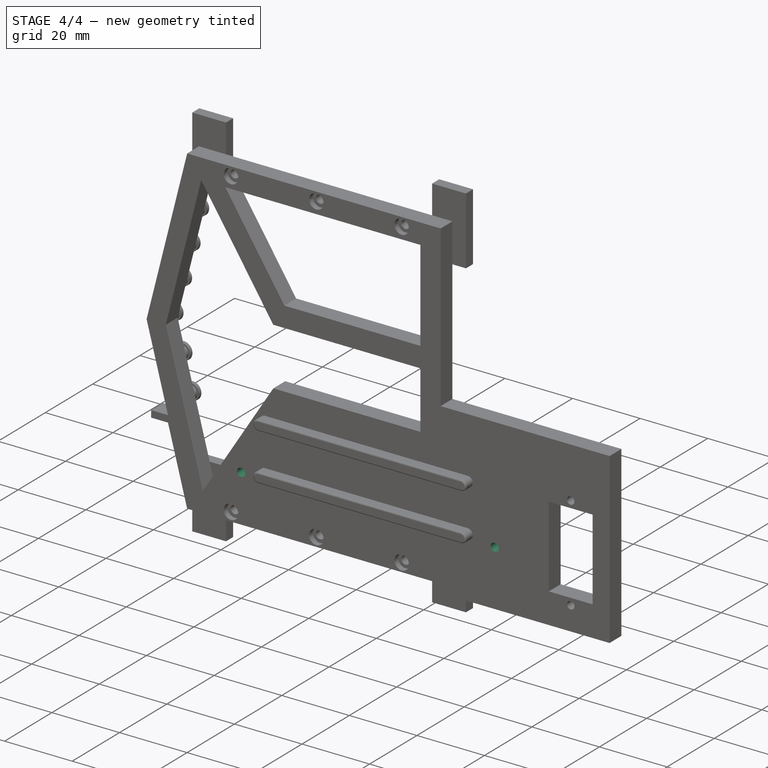
[diagram: stage 4 of 4 — iso view after this stage's code; geometry added in this stage tinted green]
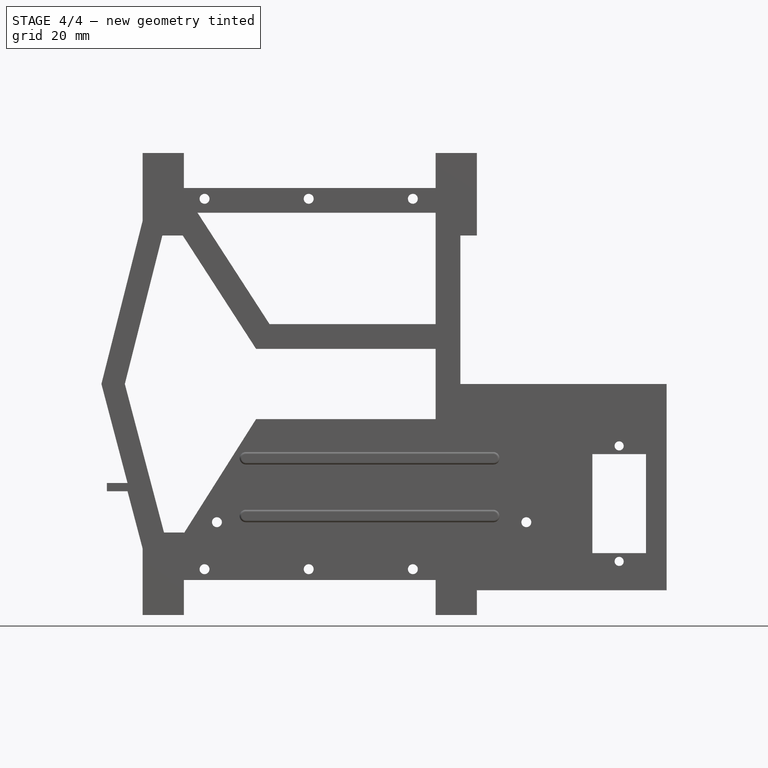
[diagram: stage 4 of 4 — front view after this stage's code; geometry added in this stage tinted green]
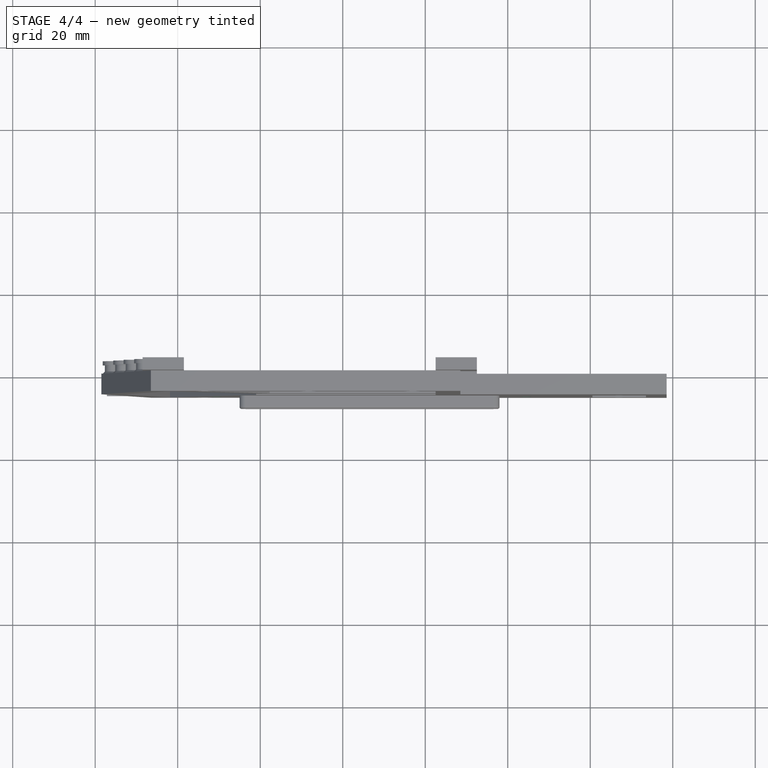
[diagram: stage 4 of 4 — top view after this stage's code; geometry added in this stage tinted green]
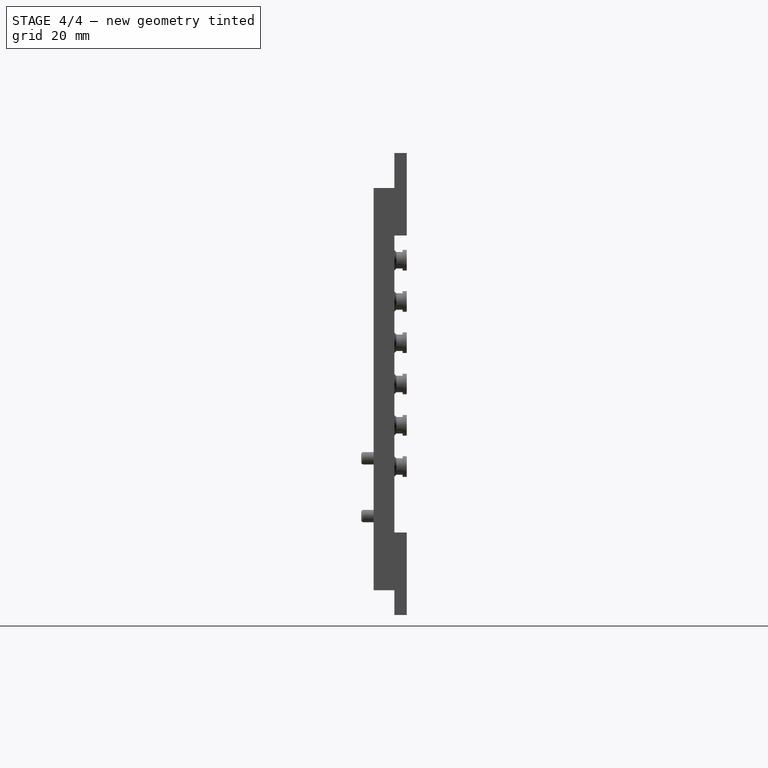
[diagram: stage 4 of 4 — right view after this stage's code; geometry added in this stage tinted green]
FEATURE [PartDesign::Fillet] Fillet
  Base = -> Chamfer [Face101,Face102]
  BaseFeature = -> Chamfer
  Placement = pos=(0,0,0) rot=(1,0,0;1.5708rad)
  Radius = 0.5
  SupportTransform = false
  Suppressed = false
  UseAllEdges = false
FEATURE [Sketcher::SketchObject] Sketch007  label="Sketch-clamp=-holes"
  ArcFitTolerance = 1e-06
  AttachmentSupport = -> [Fillet]
  ExternalGeometry = -> [Fillet]
  FullyConstrained = true
  MakeInternals = false
  MapMode = 5
  Placement = pos=(0,-1.5e-15,0) rot=(-1,0,0;1.5708rad)
  sketch-geometry (4):
    g0: LineSegment [constr] StartX=-3.49591 StartY=26 StartZ=0 EndX=-16.812 EndY=26 EndZ=0
    g1: LineSegment [constr] StartX=56.5041 StartY=26 StartZ=0 EndX=80.5041 EndY=26 EndZ=0
    g2: Circle CenterX=-10.4959 CenterY=26 CenterZ=0 NormalX=0 NormalY=0 NormalZ=1 AngleXU=0 Radius=1
    g3: Circle CenterX=64.5041 CenterY=26 CenterZ=0 NormalX=0 NormalY=0 NormalZ=1 AngleXU=0 Radius=1
  constraints (12):
    c: Coincident(g0,g-3)
    c: PointOnObject(g0,g-5)
    c: Horizontal(g0)
    c: Coincident(g1,g-3)
    c: PointOnObject(g1,g-4)
    c: Horizontal(g1)
    c: Diameter(g2) = 2
    c: PointOnObject(g2,g0)
    c: Diameter(g3) = 2
    c: PointOnObject(g3,g1)
    c: DistanceX(g2,g0) = 7
    c: DistanceX(g2,g3) = 75
FEATURE [PartDesign::Hole] Hole001
  BaseFeature = -> Fillet
  CustomThreadClearance = 0
  Depth = 25
  DepthType = 0
  Diameter = 2.4
  DrillForDepth = false
  DrillPoint = 1
  DrillPointAngle = 118
  HoleCutCountersinkAngle = 90
  HoleCutCustomValues = false
  HoleCutDepth = 1.6
  HoleCutDiameter = 4.3
  HoleCutType = 4
  ModelThread = false
  Placement = pos=(0,0,0) rot=(1,0,0;1.5708rad)
  Profile = -> Sketch007
  Suppressed = false
  Tapered = false
  TaperedAngle = 90
  ThreadClass = 0
  ThreadDepth = 25
  ThreadDepthType = 0
  ThreadDirection = 0
  ThreadFit = 0
  ThreadSize = 6
  ThreadType = 1
  Threaded = false
  UseCustomThreadClearance = false
FEATURE [Measure::MeasureDistance] Distance  label="Distance: 137.00 mm"
  Distance = 137
  DistanceX = 137
  DistanceY = 0
  DistanceZ = 3.6e-15
  Element1 = -> Part [Body.Hole001.Edge76]
  Element2 = -> Part [Body.Hole001.Face13]
  Position1 = (-38.4959,-1.7e-15,7.5)
  Position2 = (98.5041,-1.7e-15,7.5)
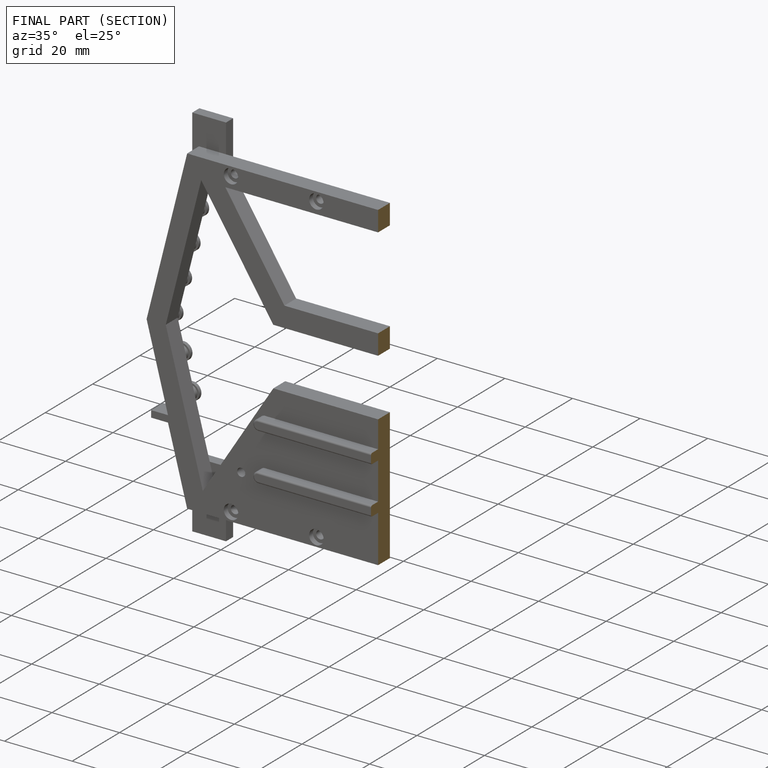
[diagram: finished part — half-section view (interior)]
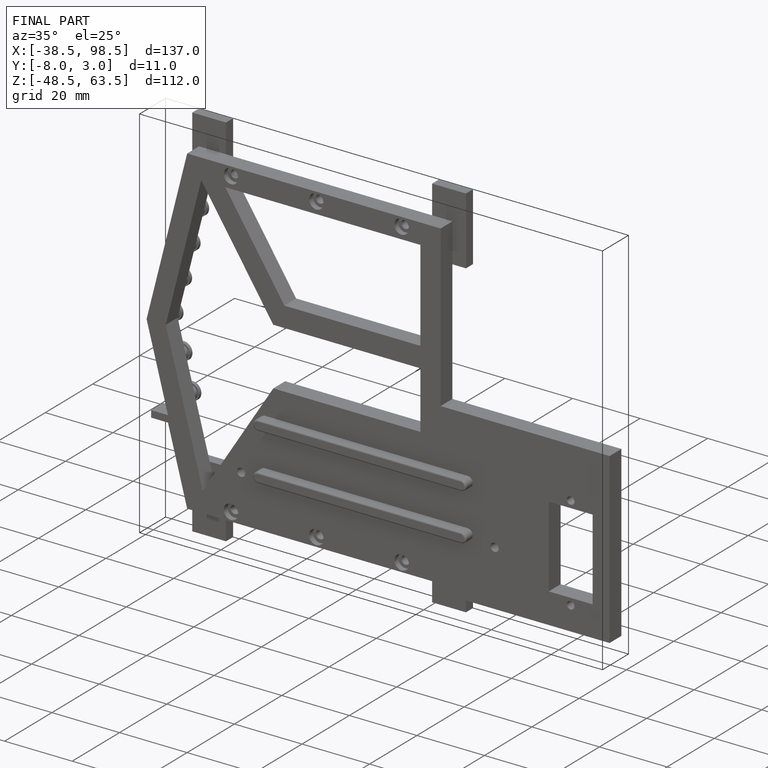
[diagram: finished part — iso view with bounding-box wireframe]
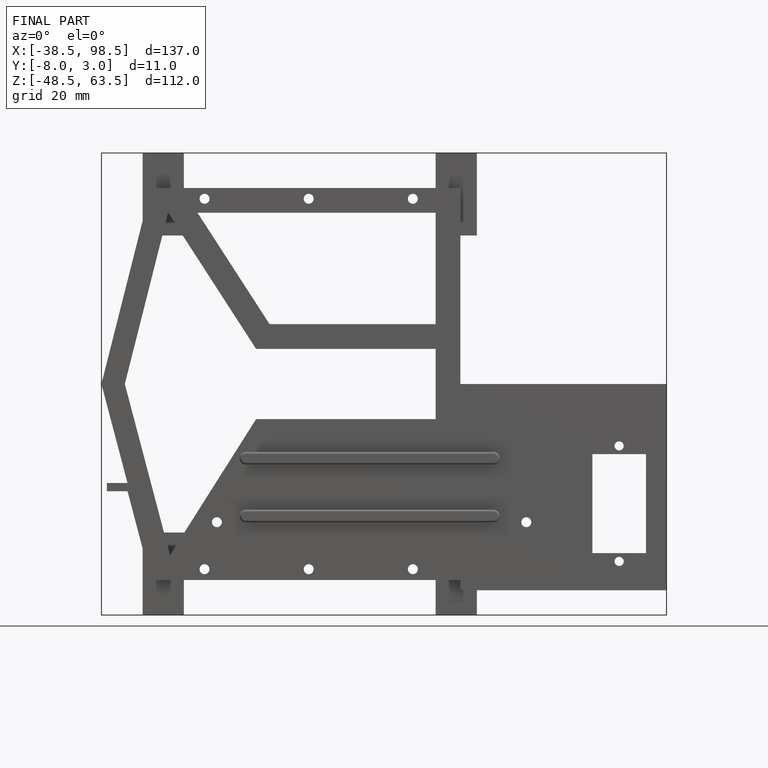
[diagram: finished part — front view with bounding-box wireframe]
